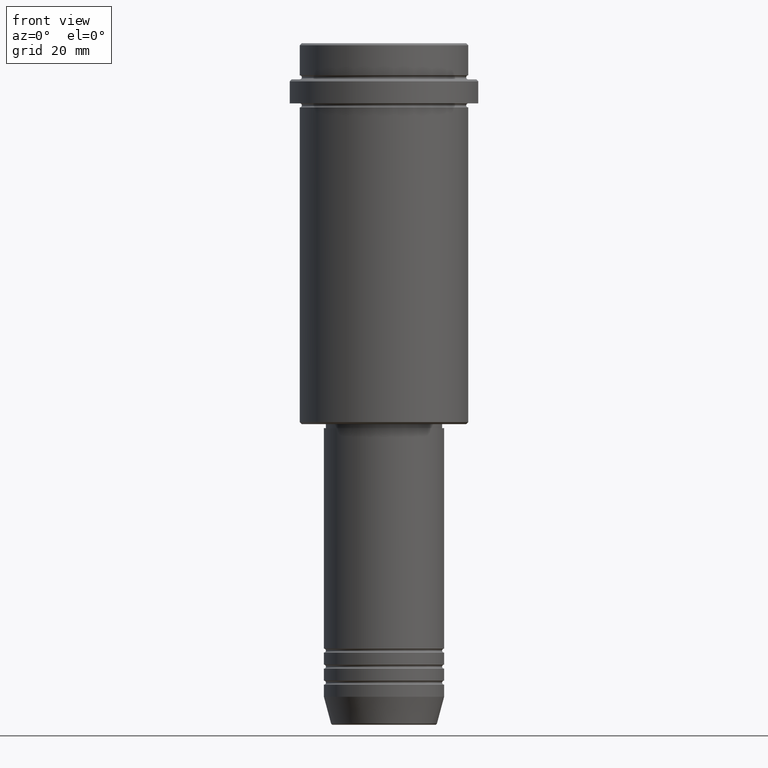
[diagram: clean part render]
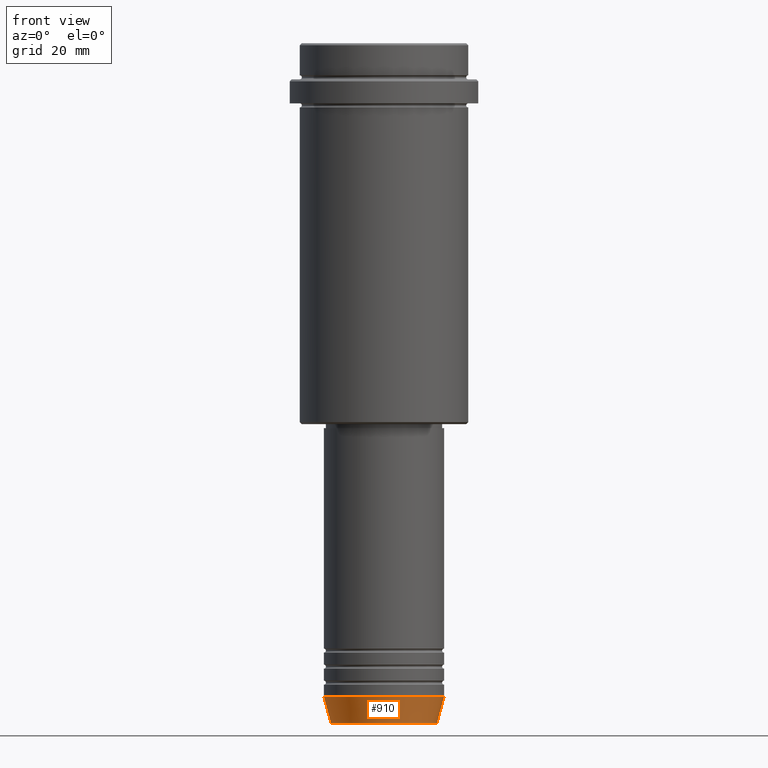
[diagram: same view with one face highlighted and labeled with its STEP entity id]
A machine part, front view. The second image highlights one B-rep face of the part: STEP entity #910.
In plain terms, the highlighted conical surface has half-angle 15 deg.
Its self-contained STEP definition (entity closure, byte-faithful):
#14 = CARTESIAN_POINT ( 'NONE',  ( 13.22365507213719305, 0.000000000000000000, -169.6294095225512422 ) ) ;
#27 = DIRECTION ( 'NONE',  ( -0.000000000000000000, -0.000000000000000000, 1.000000000000000000 ) ) ;
#62 = AXIS2_PLACEMENT_3D ( 'NONE', #1347, #27, #105 ) ;
#105 = DIRECTION ( 'NONE',  ( 1.000000000000000000, 0.000000000000000000, 0.000000000000000000 ) ) ;
#118 = AXIS2_PLACEMENT_3D ( 'NONE', #264, #391, #1361 ) ;
#134 = FACE_OUTER_BOUND ( 'NONE', #445, .T. ) ;
#181 = EDGE_CURVE ( 'NONE', #327, #1010, #474, .T. ) ;
#183 = EDGE_CURVE ( 'NONE', #1010, #1377, #1354, .T. ) ;
#213 = DIRECTION ( 'NONE',  ( -0.2588190451025213501, 3.169619151431772337E-17, 0.9659258262890680902 ) ) ;
#214 = VECTOR ( 'NONE', #580, 1000.000000000000000 ) ;
#264 = CARTESIAN_POINT ( 'NONE',  ( 0.000000000000000000, 0.000000000000000000, -169.6294095225512422 ) ) ;
#317 = CIRCLE ( 'NONE', #388, 15.00000000000000000 ) ;
#324 = LINE ( 'NONE', #1316, #361 ) ;
#327 = VERTEX_POINT ( 'NONE', #647 ) ;
#361 = VECTOR ( 'NONE', #213, 1000.000000000000000 ) ;
#388 = AXIS2_PLACEMENT_3D ( 'NONE', #1260, #489, #1348 ) ;
#391 = DIRECTION ( 'NONE',  ( -0.000000000000000000, -0.000000000000000000, 1.000000000000000000 ) ) ;
#445 = EDGE_LOOP ( 'NONE', ( #1068, #849, #944, #1394 ) ) ;
#474 = CIRCLE ( 'NONE', #118, 13.22365507213719305 ) ;
#489 = DIRECTION ( 'NONE',  ( -0.000000000000000000, -0.000000000000000000, 1.000000000000000000 ) ) ;
#578 = CARTESIAN_POINT ( 'NONE',  ( -15.00000000000000000, 1.836970198721029589E-15, -163.0000000000000000 ) ) ;
#580 = DIRECTION ( 'NONE',  ( 0.2588190451025213501, 0.000000000000000000, 0.9659258262890680902 ) ) ;
#587 = CARTESIAN_POINT ( 'NONE',  ( 15.00000000000000000, 0.000000000000000000, -163.0000000000000000 ) ) ;
#647 = CARTESIAN_POINT ( 'NONE',  ( -13.22365507213719305, 1.728200442216588583E-15, -169.6294095225512422 ) ) ;
#742 = VERTEX_POINT ( 'NONE', #578 ) ;
#849 = ORIENTED_EDGE ( 'NONE', *, *, #181, .T. ) ;
#864 = CONICAL_SURFACE ( 'NONE', #62, 15.00000000000000000, 0.2617993877991500740 ) ;
#910 = ADVANCED_FACE ( 'NONE', ( #134 ), #864, .T. ) ;
#944 = ORIENTED_EDGE ( 'NONE', *, *, #183, .T. ) ;
#1007 = CARTESIAN_POINT ( 'NONE',  ( 15.00000000000000000, 0.000000000000000000, -163.0000000000000000 ) ) ;
#1010 = VERTEX_POINT ( 'NONE', #14 ) ;
#1064 = EDGE_CURVE ( 'NONE', #742, #1377, #317, .T. ) ;
#1068 = ORIENTED_EDGE ( 'NONE', *, *, #1382, .F. ) ;
#1260 = CARTESIAN_POINT ( 'NONE',  ( 0.000000000000000000, 0.000000000000000000, -163.0000000000000000 ) ) ;
#1316 = CARTESIAN_POINT ( 'NONE',  ( -15.00000000000000000, 1.836970198721029589E-15, -163.0000000000000000 ) ) ;
#1347 = CARTESIAN_POINT ( 'NONE',  ( 0.000000000000000000, 0.000000000000000000, -163.0000000000000000 ) ) ;
#1348 = DIRECTION ( 'NONE',  ( 1.000000000000000000, 0.000000000000000000, 0.000000000000000000 ) ) ;
#1354 = LINE ( 'NONE', #587, #214 ) ;
#1361 = DIRECTION ( 'NONE',  ( 1.000000000000000000, 0.000000000000000000, 0.000000000000000000 ) ) ;
#1377 = VERTEX_POINT ( 'NONE', #1007 ) ;
#1382 = EDGE_CURVE ( 'NONE', #327, #742, #324, .T. ) ;
#1394 = ORIENTED_EDGE ( 'NONE', *, *, #1064, .F. ) ;